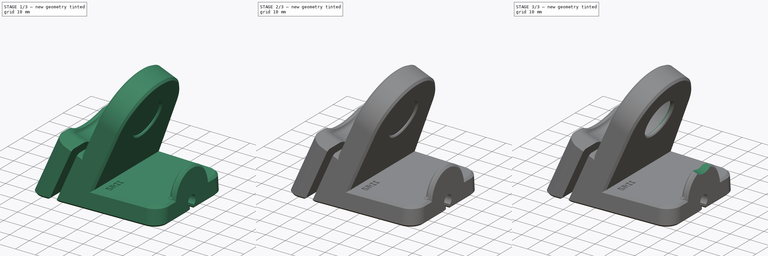
[diagram: build sequence overview — one tinted view per stage of 3, left to right]
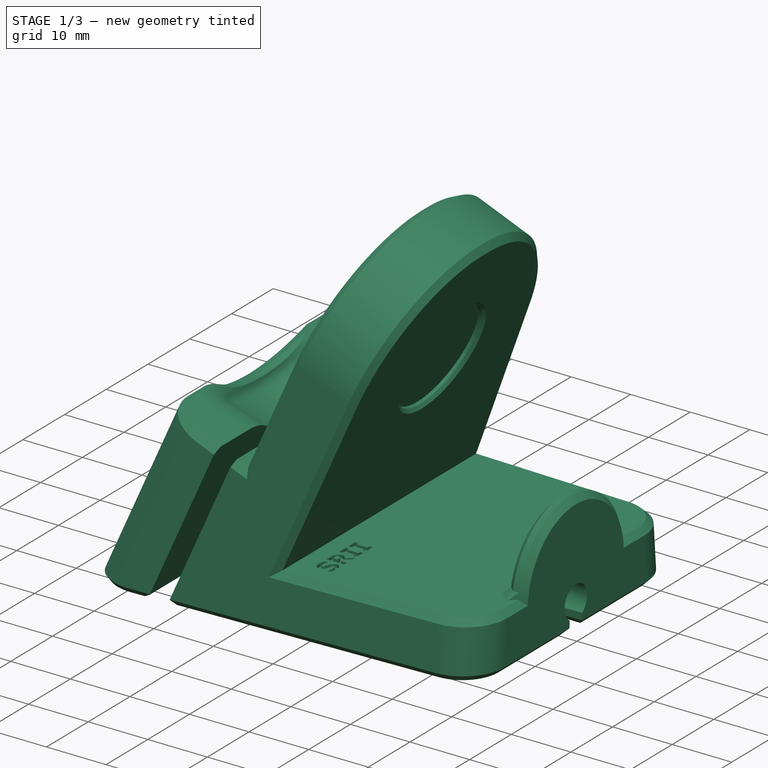
[diagram: stage 1 of 3 — iso view after this stage's code; geometry added in this stage tinted green]
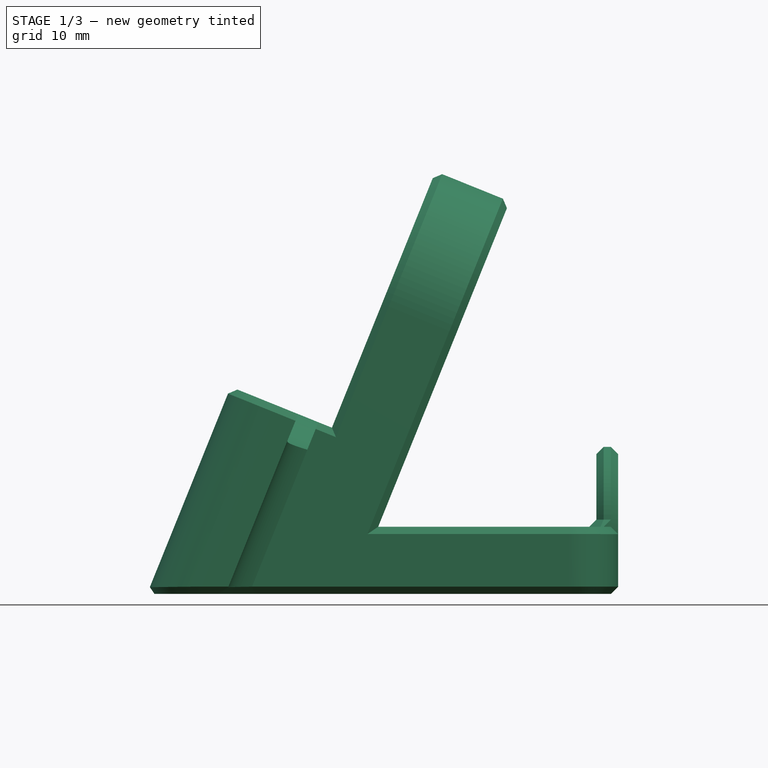
[diagram: stage 1 of 3 — front view after this stage's code; geometry added in this stage tinted green]
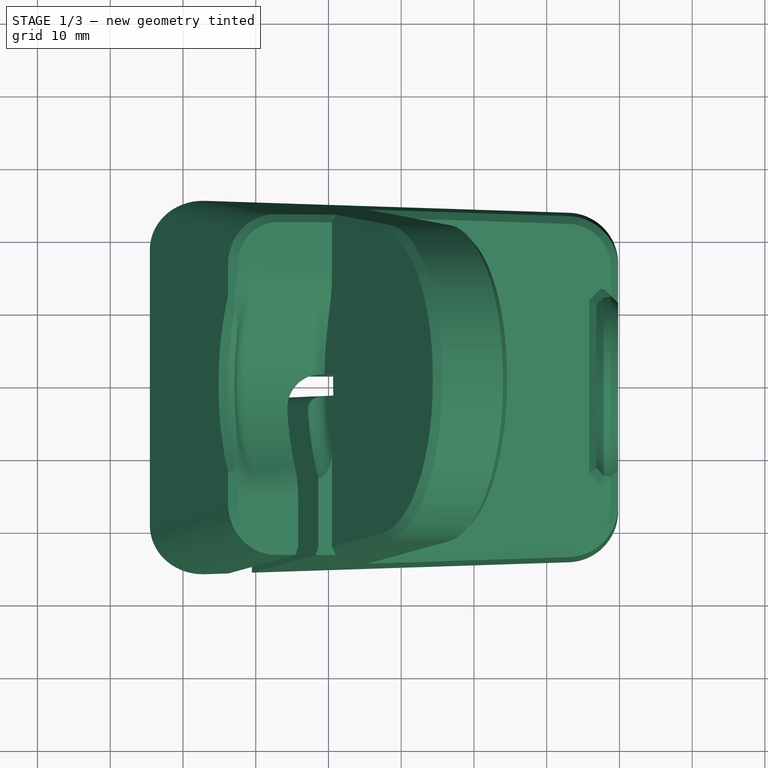
[diagram: stage 1 of 3 — top view after this stage's code; geometry added in this stage tinted green]
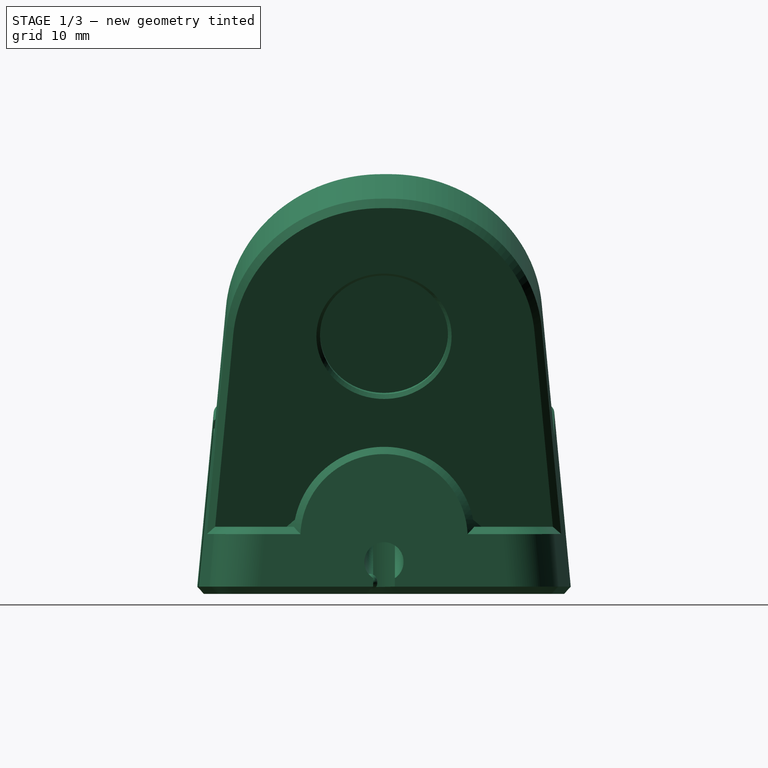
[diagram: stage 1 of 3 — right view after this stage's code; geometry added in this stage tinted green]
FCSTD DOCUMENT  (FreeCAD 0.22R35822 (Git))
Label: charger stand
License: All rights reserved
LicenseURL: http://en.wikipedia.org/wiki/All_rights_reserved
objects: Sketcher::SketchObject×6, PartDesign::Pocket×4, Part::Feature×2, Part::Refine×1, PartDesign::FeatureBase×1, PartDesign::Pad×1, PartDesign::Plane×1, PartDesign::Chamfer×1, PartDesign::Body×1
note: 24 computed .brp shape members not serialized (recipe doc carries the construction recipe); baked Part::Feature solids carry a one-line shape summary decoded from their .brp

FEATURE [Part::Feature] Galaxy_Watch_3_Charger_Base_with_logo001
  shape: bbox 64.39 x 51.34 x 57.7 mm, 19726 faces, 0 solids (baked)
FEATURE [Part::Refine] Galaxy_Watch_3_Charger_Base_with_logo002
  Source = -> Galaxy_Watch_3_Charger_Base_with_logo001
FEATURE [Part::Feature] Galaxy_Watch_3_Charger_Base_with_logo002_solid  label="Galaxy_Watch_3_Charger_Base_with_logo002 (Solid)"
  shape: bbox 64.39 x 51.34 x 57.7 mm, 18059 faces (baked)
FEATURE [PartDesign::FeatureBase] BaseFeature
  BaseFeature = -> Galaxy_Watch_3_Charger_Base_with_logo002_solid
FEATURE [Sketcher::SketchObject] Sketch
  FullyConstrained = false
  MapMode = 5
  Placement = pos=(-51.4766,-5.48886e-06,20.7979) rot=(0.488067,-0.488067,-0.723589;1.88883rad)
  Support = -> [BaseFeature]
  sketch-geometry (1):
    g0: Circle CenterX=0 CenterY=23.1451 CenterZ=0 NormalX=0 NormalY=0 NormalZ=1 AngleXU=0 Radius=17.5
  constraints (2):
    c: PointOnObject(g0,g-2)
    c: Diameter(g0) = 35
FEATURE [PartDesign::Pad] Pad
  BaseFeature = -> BaseFeature
  Direction = (-0.927184,-9.88641e-08,0.374607)
  Length = 10
  Length2 = 10
  Profile = -> Sketch
  ReferenceAxis = -> Sketch [N_Axis]
  Reversed = true
  Type = 0
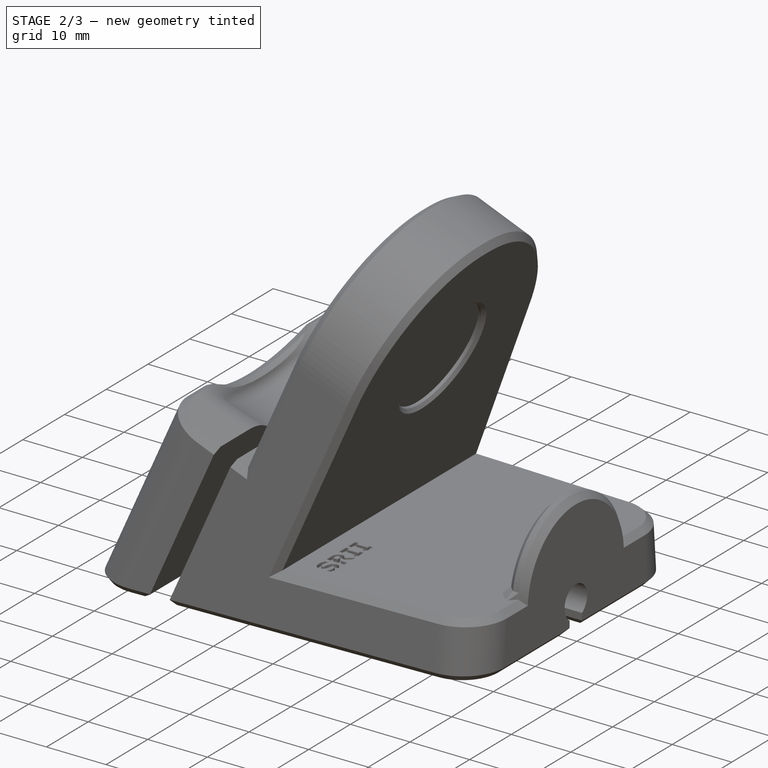
[diagram: stage 2 of 3 — iso view after this stage's code; geometry added in this stage tinted green]
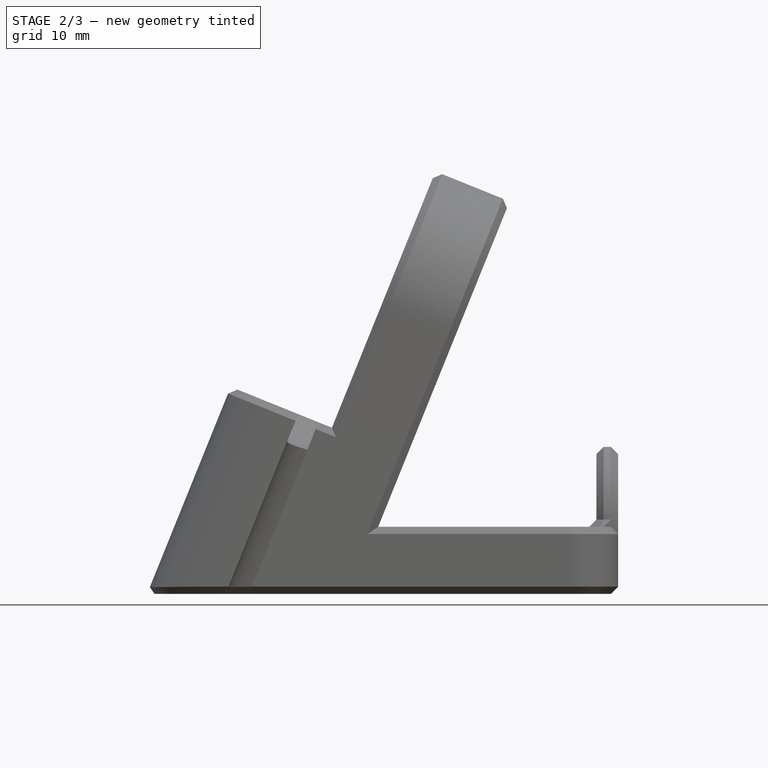
[diagram: stage 2 of 3 — front view after this stage's code; geometry added in this stage tinted green]
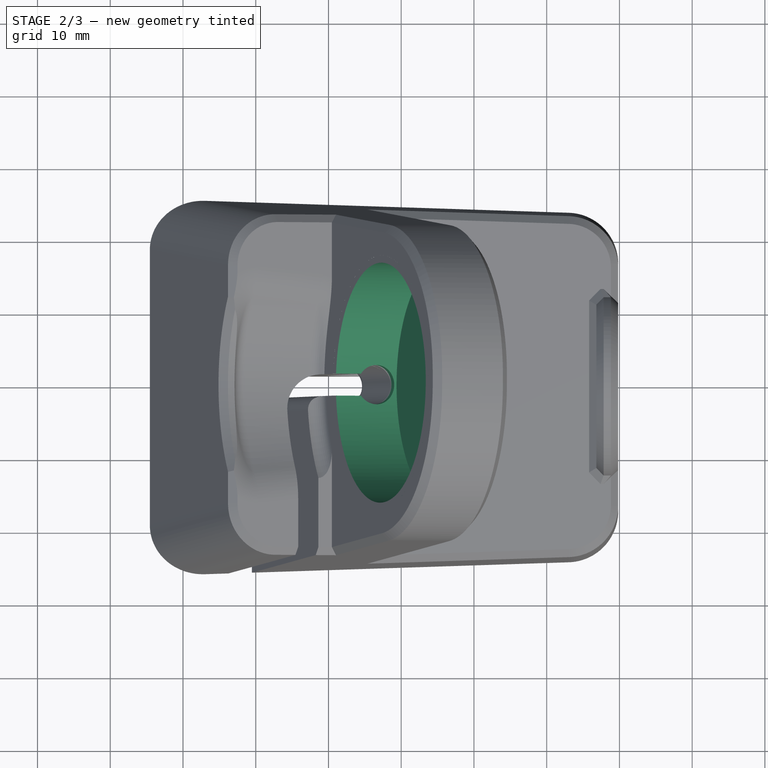
[diagram: stage 2 of 3 — top view after this stage's code; geometry added in this stage tinted green]
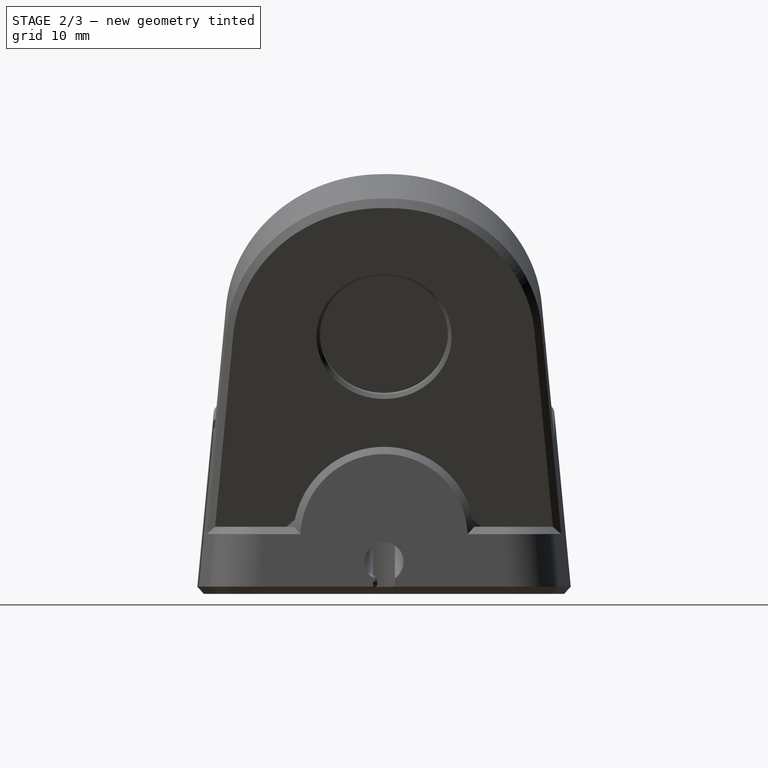
[diagram: stage 2 of 3 — right view after this stage's code; geometry added in this stage tinted green]
FEATURE [Sketcher::SketchObject] Sketch001
  ExternalGeometry = -> [Pad]
  FullyConstrained = false
  MapMode = 5
  Placement = pos=(-51.4766,-5.48886e-06,20.7979) rot=(0.488067,-0.488067,-0.723589;1.88883rad)
  Support = -> [Pad]
  sketch-geometry (1):
    g0: Circle CenterX=0 CenterY=23.1451 CenterZ=0 NormalX=0 NormalY=0 NormalZ=1 AngleXU=0 Radius=16.5
  constraints (1):
    c: Diameter(g0) = 33
FEATURE [PartDesign::Pocket] Pocket
  BaseFeature = -> Pad
  Direction = (0.927184,9.88641e-08,-0.374607)
  Length = 9
  Length2 = 5
  Profile = -> Sketch001
  ReferenceAxis = -> Sketch001 [N_Axis]
  Type = 0
FEATURE [PartDesign::Plane] DatumPlane
  AttachmentOffset = pos=(0,0,1.25) rot=(0,0,1;0rad)
  Length = 67.3829
  MapMode = 45
  Placement = pos=(-44.3843,-0.000730592,25.4337) rot=(0.183973,0.183641,0.965624;1.60534rad)
  ResizeMode = 0
  Support = -> [Pocket]
  Width = 139.986
FEATURE [Sketcher::SketchObject] Sketch002
  ExternalGeometry = -> [Pocket]
  FullyConstrained = false
  MapMode = 5
  Placement = pos=(-44.3843,-0.000730592,25.4337) rot=(0.183973,0.183641,0.965624;1.60534rad)
  Support = -> [DatumPlane]
  sketch-geometry (1):
    g0: Circle CenterX=0.0365632 CenterY=-1.1061 CenterZ=0 NormalX=0 NormalY=0 NormalZ=1 AngleXU=0 Radius=2.7
  constraints (1):
    c: Diameter(g0) = 5.4
FEATURE [PartDesign::Pocket] Pocket001
  BaseFeature = -> Pocket
  Direction = (-0.367316,0.000410432,-0.930096)
  Length = 3
  Length2 = 5
  Profile = -> Sketch002
  ReferenceAxis = -> Sketch002 [N_Axis]
  Type = 0
FEATURE [Sketcher::SketchObject] Sketch003
  FullyConstrained = true
  MapMode = 5
  Placement = pos=(-16.6457,12.6211,-10.1459) rot=(0.699538,0.217226,0.680779;1.62034rad)
  Support = -> [Pocket001]
FEATURE [Sketcher::SketchObject] Sketch004
  FullyConstrained = false
  MapMode = 5
  Placement = pos=(-51.4766,-5.48886e-06,20.7979) rot=(0.488067,-0.488067,-0.723589;1.88883rad)
  Support = -> [Pocket001]
  sketch-geometry (4):
    g0: LineSegment StartX=-1.52157 StartY=5.50296 StartZ=0 EndX=1.50841 EndY=5.50296 EndZ=0
    g1: LineSegment StartX=1.50841 StartY=5.50296 StartZ=0 EndX=1.50841 EndY=6.84455 EndZ=0
    g2: LineSegment StartX=1.50841 StartY=6.84455 StartZ=0 EndX=-1.52157 EndY=6.84455 EndZ=0
    g3: LineSegment StartX=-1.52157 StartY=6.84455 StartZ=0 EndX=-1.52157 EndY=5.50296 EndZ=0
  constraints (8):
    c: Coincident(g0,g1)
    c: Coincident(g1,g2)
    c: Coincident(g2,g3)
    c: Coincident(g3,g0)
    c: Horizontal(g0)
    c: Horizontal(g2)
    c: Vertical(g1)
    c: Vertical(g3)
FEATURE [PartDesign::Pocket] Pocket002
  BaseFeature = -> Pocket001
  Direction = (0.927184,9.88641e-08,-0.374607)
  Length = 5
  Length2 = 5
  Profile = -> Sketch004
  ReferenceAxis = -> Sketch004 [N_Axis]
  Type = 0
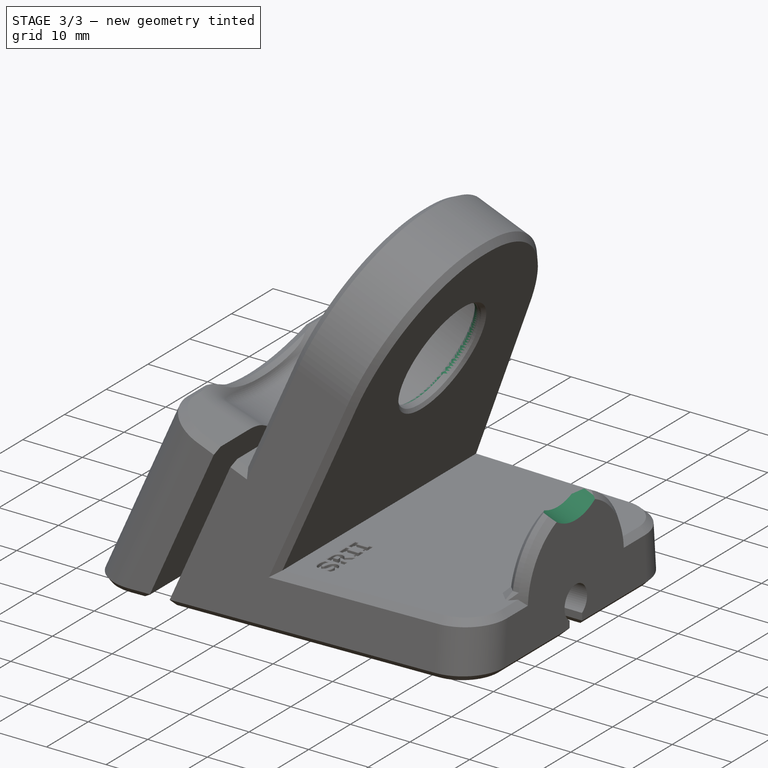
[diagram: stage 3 of 3 — iso view after this stage's code; geometry added in this stage tinted green]
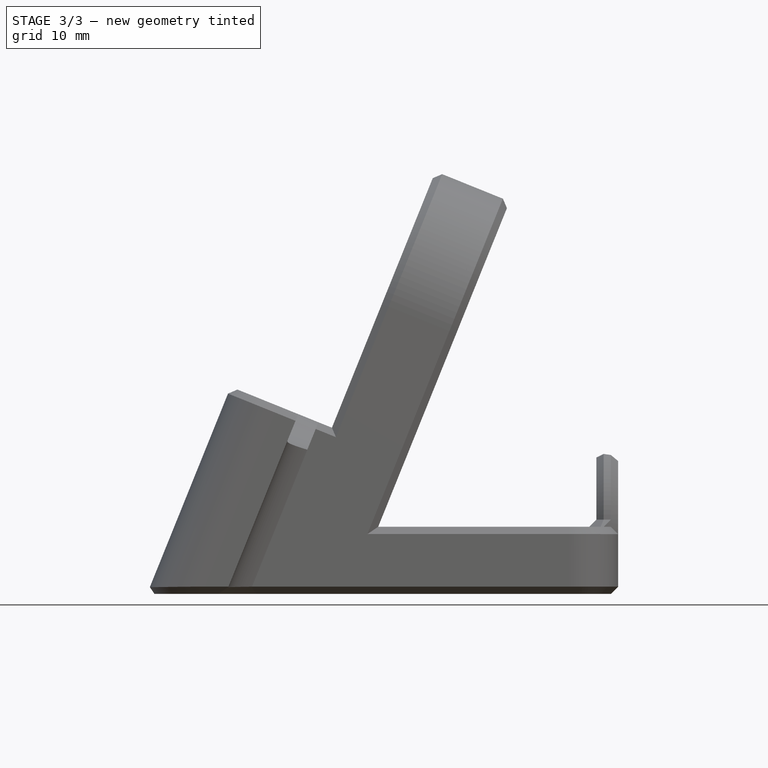
[diagram: stage 3 of 3 — front view after this stage's code; geometry added in this stage tinted green]
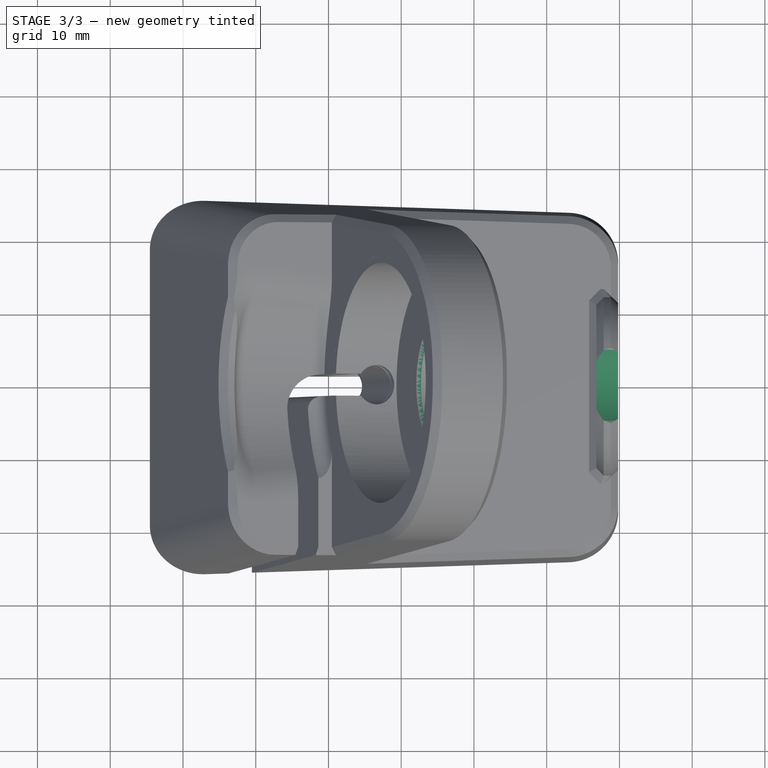
[diagram: stage 3 of 3 — top view after this stage's code; geometry added in this stage tinted green]
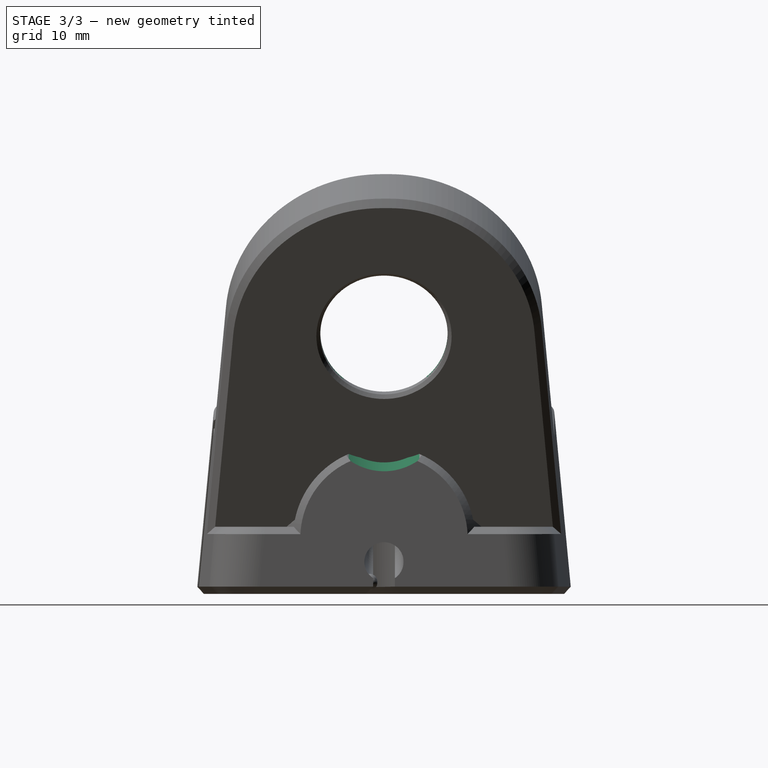
[diagram: stage 3 of 3 — right view after this stage's code; geometry added in this stage tinted green]
FEATURE [Sketcher::SketchObject] Sketch005
  ExternalGeometry = -> [Pocket002]
  FullyConstrained = true
  MapMode = 5
  Placement = pos=(-43.1319,-4.59909e-06,17.4264) rot=(0.488067,-0.488067,-0.723589;1.88883rad)
  Support = -> [Pocket002]
  sketch-geometry (1):
    g0: Circle CenterX=-4.26e-14 CenterY=23.1451 CenterZ=0 NormalX=0 NormalY=0 NormalZ=1 AngleXU=0 Radius=8.75
  constraints (2):
    c: Coincident(g0,g-3)
    c: Diameter(g0) = 17.5
FEATURE [PartDesign::Pocket] Pocket003
  BaseFeature = -> Pocket002
  Direction = (0.927184,9.88641e-08,-0.374607)
  Length = 5
  Length2 = 5
  Profile = -> Sketch005
  ReferenceAxis = -> Sketch005 [N_Axis]
  Type = 1
FEATURE [PartDesign::Chamfer] Chamfer
  Angle = 45
  Base = -> Pocket003 [Edge5021]
  BaseFeature = -> Pocket003
  ChamferType = 0
  FlipDirection = false
  Size = 0.5
  Size2 = 1
  SupportTransform = false
  UseAllEdges = false
FEATURE [PartDesign::Body] Body
  BaseFeature = -> Galaxy_Watch_3_Charger_Base_with_logo002_solid
  Group = -> [BaseFeature,Sketch,Pad,Sketch001,Pocket,DatumPlane,Sketch002,Pocket001,Sketch003,Sketch004,Pocket002,Sketch005,Pocket003,Chamfer]
  Origin = -> Origin
  Tip = -> Chamfer
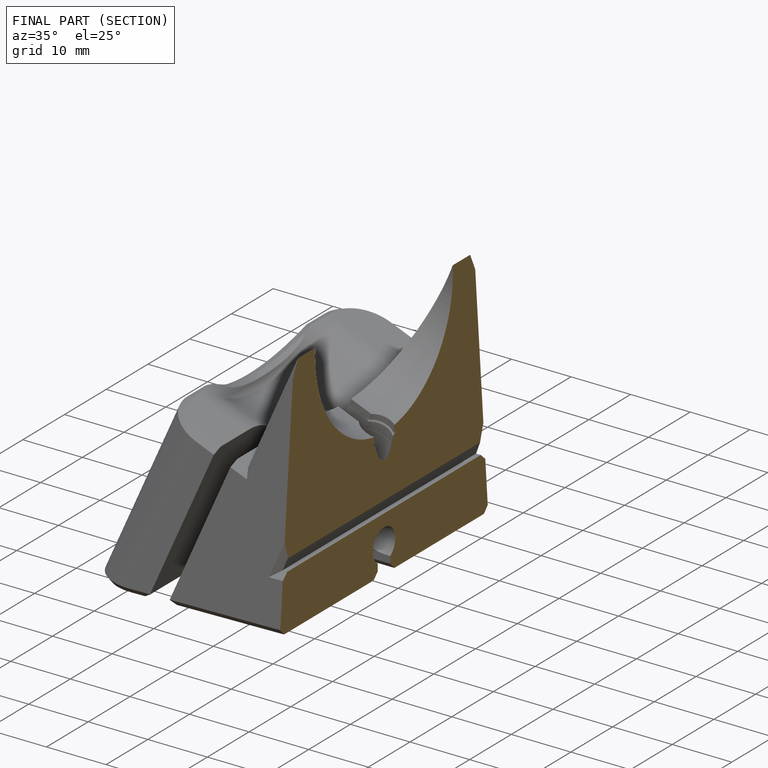
[diagram: finished part — half-section view (interior)]
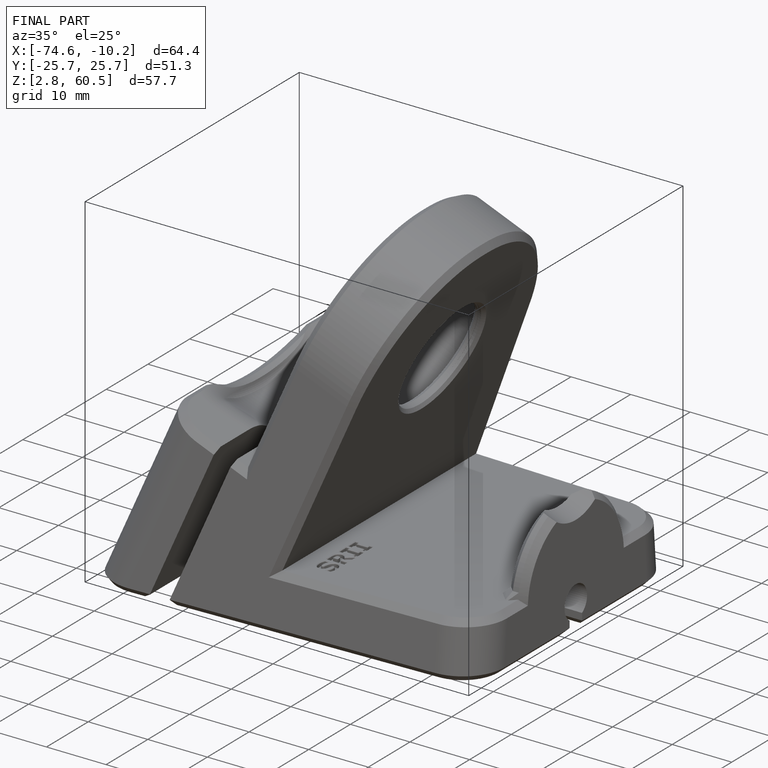
[diagram: finished part — iso view with bounding-box wireframe]
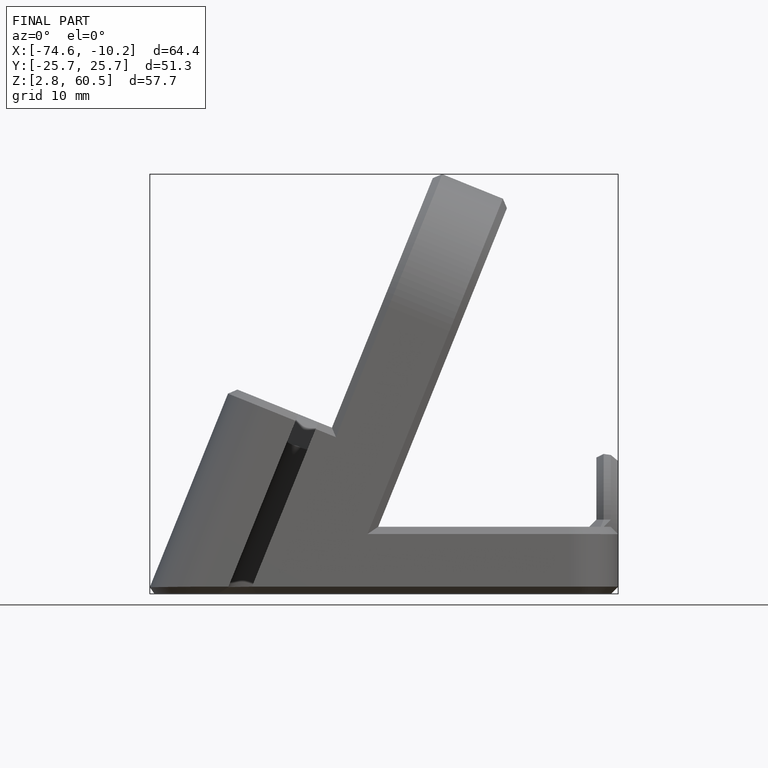
[diagram: finished part — front view with bounding-box wireframe]
